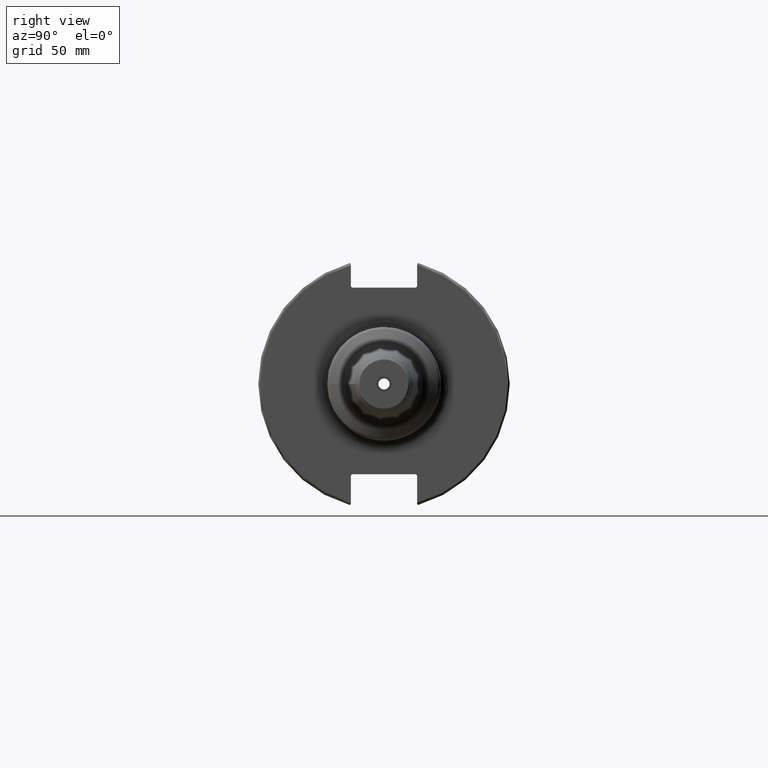
[diagram: clean part render]
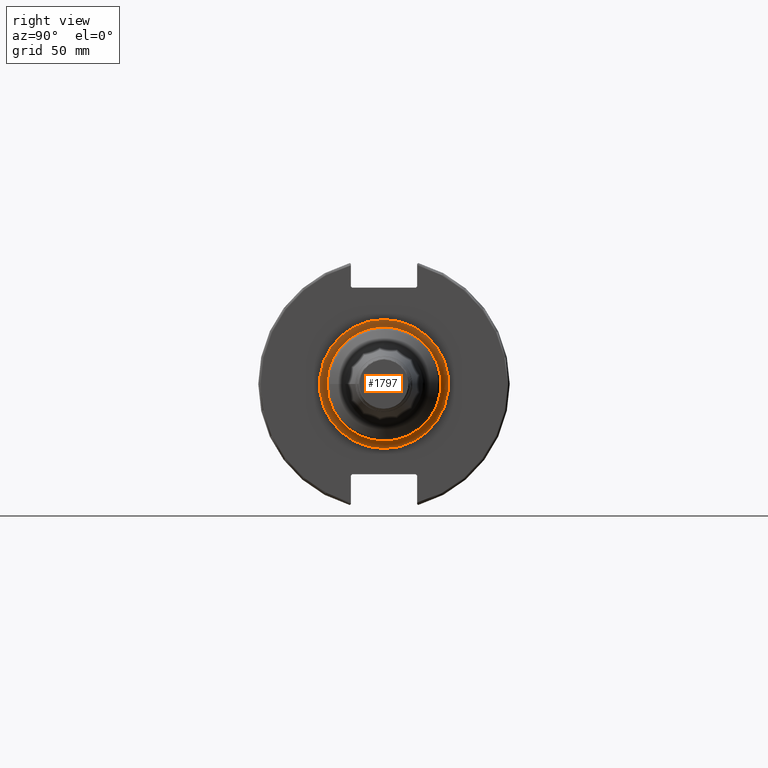
[diagram: same view with one face highlighted and labeled with its STEP entity id]
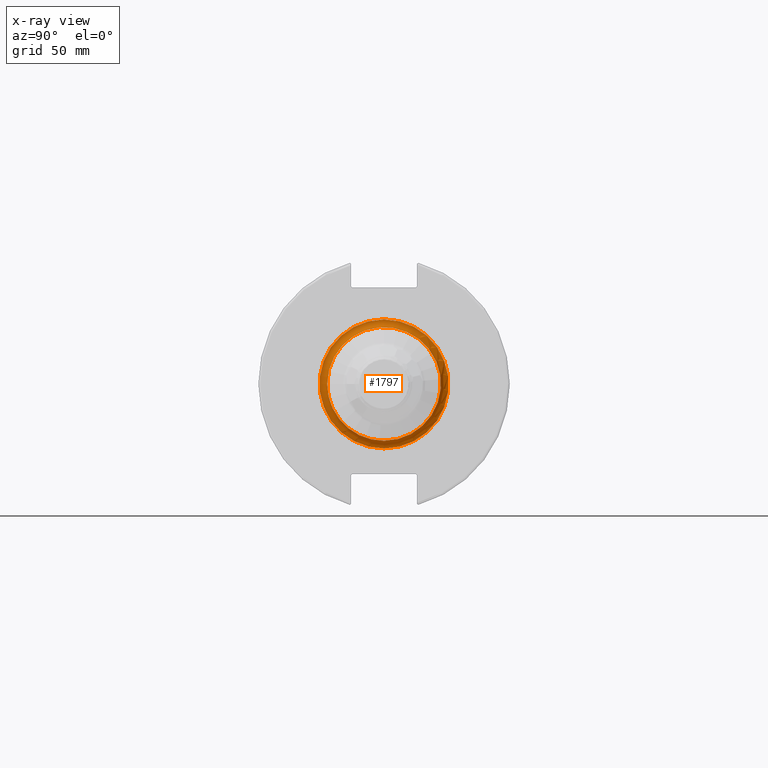
[diagram: x-ray of the same camera — body ghosted, the highlighted face saturated]
A machine part, right view. The second image highlights one B-rep face of the part: STEP entity #1797.
The next image is the same camera in x-ray: the body ghosted, the highlighted face saturated — about 0% of this face is hidden behind the body in this view.
In plain terms, the highlighted toroidal blend (fillet) surface has major radius 25.25 mm and minor (blend) radius 3 mm.
Its self-contained STEP definition (entity closure, byte-faithful):
#385=FACE_OUTER_BOUND('',#491,.T.);
#491=EDGE_LOOP('',(#1213,#1214,#1215,#1216,#1217));
#617=CIRCLE('',#1927,22.25);
#618=CIRCLE('',#1928,3.);
#619=CIRCLE('',#1929,25.25);
#620=CIRCLE('',#1930,22.25);
#741=VERTEX_POINT('',#2729);
#742=VERTEX_POINT('',#2730);
#743=VERTEX_POINT('',#2732);
#930=EDGE_CURVE('',#741,#742,#617,.T.);
#931=EDGE_CURVE('',#742,#743,#618,.T.);
#932=EDGE_CURVE('',#743,#743,#619,.T.);
#933=EDGE_CURVE('',#742,#741,#620,.T.);
#1213=ORIENTED_EDGE('',*,*,#930,.T.);
#1214=ORIENTED_EDGE('',*,*,#931,.T.);
#1215=ORIENTED_EDGE('',*,*,#932,.T.);
#1216=ORIENTED_EDGE('',*,*,#931,.F.);
#1217=ORIENTED_EDGE('',*,*,#933,.T.);
#1779=TOROIDAL_SURFACE('',#1926,25.25,3.);
#1797=ADVANCED_FACE('',(#385),#1779,.F.);
#1926=AXIS2_PLACEMENT_3D('',#2728,#2160,#2161);
#1927=AXIS2_PLACEMENT_3D('',#2731,#2162,#2163);
#1928=AXIS2_PLACEMENT_3D('',#2733,#2164,#2165);
#1929=AXIS2_PLACEMENT_3D('',#2734,#2166,#2167);
#1930=AXIS2_PLACEMENT_3D('',#2735,#2168,#2169);
#2160=DIRECTION('center_axis',(-1.,0.,0.));
#2161=DIRECTION('ref_axis',(0.,0.,1.));
#2162=DIRECTION('center_axis',(-1.,0.,0.));
#2163=DIRECTION('ref_axis',(0.,-1.,-1.22464679914735E-16));
#2164=DIRECTION('center_axis',(0.,-1.,1.22464679914735E-16));
#2165=DIRECTION('ref_axis',(0.,-1.22464679914735E-16,-1.));
#2166=DIRECTION('center_axis',(1.,0.,0.));
#2167=DIRECTION('ref_axis',(0.,-1.,-1.22464679914735E-16));
#2168=DIRECTION('center_axis',(-1.,0.,0.));
#2169=DIRECTION('ref_axis',(0.,-1.,-1.22464679914735E-16));
#2728=CARTESIAN_POINT('Origin',(22.05,0.,0.));
#2729=CARTESIAN_POINT('',(22.05,-22.25,-2.72483912810286E-15));
#2730=CARTESIAN_POINT('',(22.05,-2.72483912810286E-15,-22.25));
#2731=CARTESIAN_POINT('Origin',(22.05,0.,0.));
#2732=CARTESIAN_POINT('',(19.05,-3.09223316784707E-15,-25.25));
#2733=CARTESIAN_POINT('Origin',(22.05,-3.09223316784707E-15,-25.25));
#2734=CARTESIAN_POINT('Origin',(19.05,0.,0.));
#2735=CARTESIAN_POINT('Origin',(22.05,0.,0.));